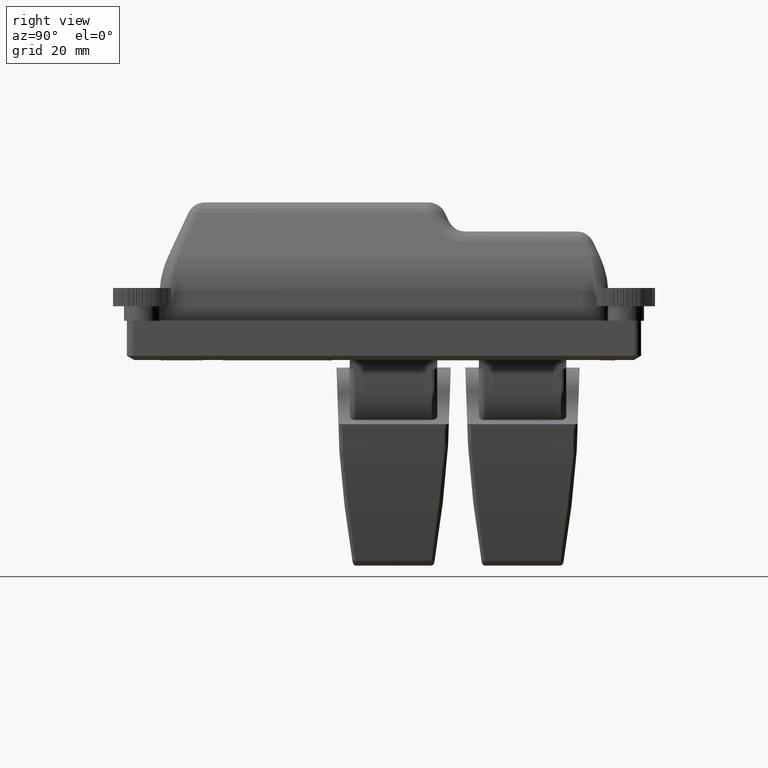
[diagram: clean part render]
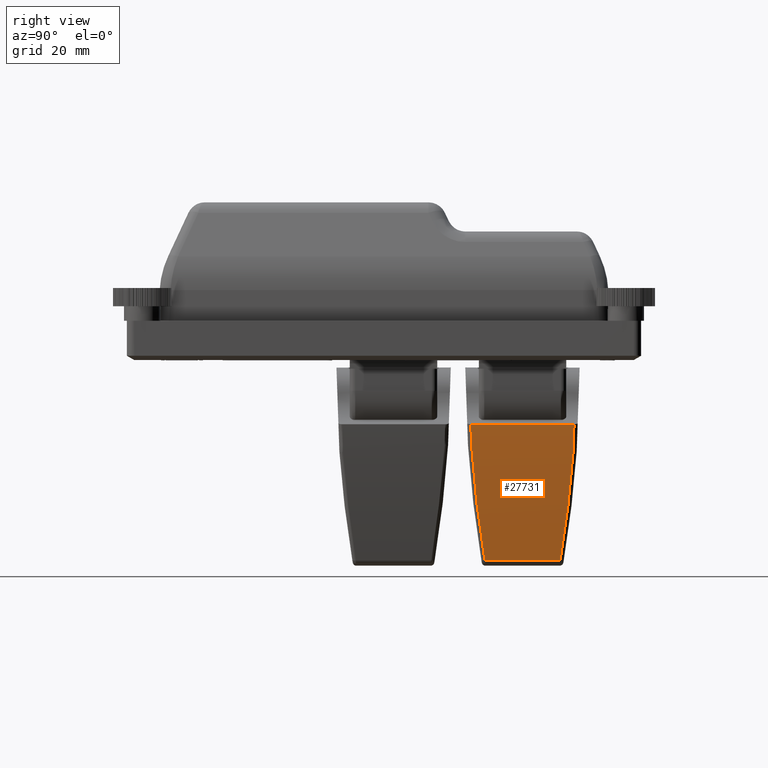
[diagram: same view with one face highlighted and labeled with its STEP entity id]
A machine part, right view. The second image highlights one B-rep face of the part: STEP entity #27731.
In plain terms, the highlighted cylindrical surface (partial cylindrical patch) has radius 323.307 mm, axis along (0, -1, -0).
Its self-contained STEP definition (entity closure, byte-faithful):
#362=ELLIPSE('',#30798,323.503179779943,323.307326495434);
#365=ELLIPSE('',#30806,323.503179779956,323.307326495434);
#1814=FACE_OUTER_BOUND('',#3298,.T.);
#3298=EDGE_LOOP('',(#22497,#22498,#22499,#22500,#22501,#22502));
#6542=LINE('',#47912,#8426);
#6553=LINE('',#48255,#8437);
#8426=VECTOR('',#37623,20.6445189631352);
#8437=VECTOR('',#37692,28.3002926431982);
#9412=B_SPLINE_CURVE_WITH_KNOTS('',3,(#47665,#47666,#47667,#47668),
 .UNSPECIFIED.,.F.,.F.,(4,4),(-3.93695668879601,-0.685448507671561),
 .UNSPECIFIED.);
#9423=B_SPLINE_CURVE_WITH_KNOTS('',3,(#47901,#47902,#47903,#47904),
 .UNSPECIFIED.,.F.,.F.,(4,4),(-3.07005838004965,0.),.UNSPECIFIED.);
#11629=VERTEX_POINT('',#47662);
#11630=VERTEX_POINT('',#47664);
#11633=VERTEX_POINT('',#47743);
#11641=VERTEX_POINT('',#47801);
#11642=VERTEX_POINT('',#47818);
#11645=VERTEX_POINT('',#47867);
#15345=EDGE_CURVE('',#11629,#11630,#9412,.T.);
#15350=EDGE_CURVE('',#11630,#11633,#362,.T.);
#15361=EDGE_CURVE('',#11641,#11642,#365,.T.);
#15368=EDGE_CURVE('',#11642,#11645,#9423,.T.);
#15371=EDGE_CURVE('',#11645,#11629,#6542,.T.);
#15415=EDGE_CURVE('',#11641,#11633,#6553,.T.);
#22497=ORIENTED_EDGE('',*,*,#15345,.F.);
#22498=ORIENTED_EDGE('',*,*,#15371,.F.);
#22499=ORIENTED_EDGE('',*,*,#15368,.F.);
#22500=ORIENTED_EDGE('',*,*,#15361,.F.);
#22501=ORIENTED_EDGE('',*,*,#15415,.T.);
#22502=ORIENTED_EDGE('',*,*,#15350,.F.);
#25541=CYLINDRICAL_SURFACE('',#30840,323.307326495434);
#27731=ADVANCED_FACE('',(#1814),#25541,.T.);
#30798=AXIS2_PLACEMENT_3D('',#47744,#37593,#37594);
#30806=AXIS2_PLACEMENT_3D('',#47819,#37611,#37612);
#30840=AXIS2_PLACEMENT_3D('',#48254,#37690,#37691);
#37593=DIRECTION('center_axis',(-1.32397558198556E-13,-0.999394586215066,
-0.034791680672494));
#37594=DIRECTION('ref_axis',(-3.78703475443713E-12,0.034791680672494,-0.999394586215066));
#37611=DIRECTION('center_axis',(1.28524291863936E-15,0.999394586215025,
-0.0347916806736856));
#37612=DIRECTION('ref_axis',(4.31592813621891E-14,-0.0347916806736856,-0.999394586215025));
#37623=DIRECTION('',(1.93631888377292E-16,-1.,-6.19622042807333E-16));
#37690=DIRECTION('center_axis',(1.93631888377292E-16,-1.,-6.19622042807333E-16));
#37691=DIRECTION('ref_axis',(-0.986638648405359,-2.91995906881053E-16,0.16292383948596));
#37692=DIRECTION('',(1.93631888377292E-16,-1.,-6.19622042807333E-16));
#47662=CARTESIAN_POINT('',(6.55982609139657,27.6977404298324,-103.777513303023));
#47664=CARTESIAN_POINT('',(14.0085957328421,24.0416484309721,-72.2616981707896));
#47665=CARTESIAN_POINT('Ctrl Pts',(6.55982609138862,27.6977404298324,-103.77751330305));
#47666=CARTESIAN_POINT('Ctrl Pts',(9.54965038686582,25.9940944778529,-93.4653541506476));
#47667=CARTESIAN_POINT('Ctrl Pts',(12.0452603930354,24.7603099631981,-82.9306148983735));
#47668=CARTESIAN_POINT('Ctrl Pts',(14.0085957317502,24.04164843214,-72.2616981695674));
#47743=CARTESIAN_POINT('',(15.0278996878052,23.838369284963,-66.4224839079266));
#47744=CARTESIAN_POINT('Origin',(-303.9596039452,22.0046257379221,-13.7480129413497));
#47801=CARTESIAN_POINT('',(15.0278996878052,52.1386619281612,-66.4224839079266));
#47818=CARTESIAN_POINT('',(13.6749515776765,51.8732459883913,-74.0465743123307));
#47819=CARTESIAN_POINT('Origin',(-303.9596039452,53.9724054753077,-13.7480129413497));
#47867=CARTESIAN_POINT('',(6.55982609140145,48.3422593929676,-103.777513303006));
#47901=CARTESIAN_POINT('Ctrl Pts',(13.6749515763719,51.8732459869934,-74.0465743108338));
#47902=CARTESIAN_POINT('Ctrl Pts',(11.7653317571711,51.1406791260358,-84.1058638702159));
#47903=CARTESIAN_POINT('Ctrl Pts',(9.38280380570863,49.9508337037662,-94.0408222480588));
#47904=CARTESIAN_POINT('Ctrl Pts',(6.55982609140153,48.3422593929677,-103.777513303006));
#47912=CARTESIAN_POINT('',(6.55982609140444,38.0199999114181,-103.777513302995));
#48254=CARTESIAN_POINT('Origin',(-303.9596039452,38.019999911418,-13.7480129413497));
#48255=CARTESIAN_POINT('',(15.0278996878052,38.0199999114181,-66.4224839079266));